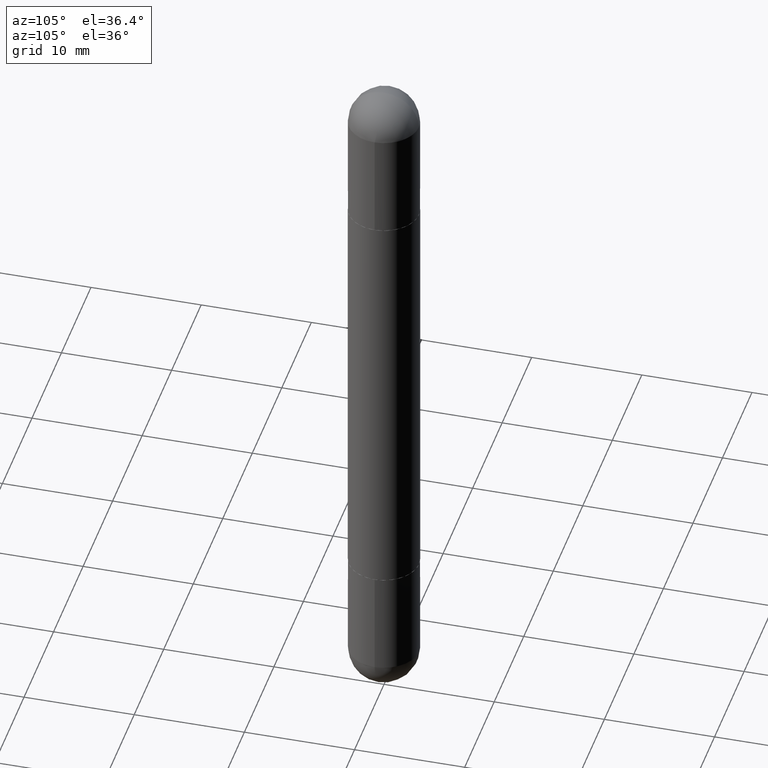
[diagram: clean part render]
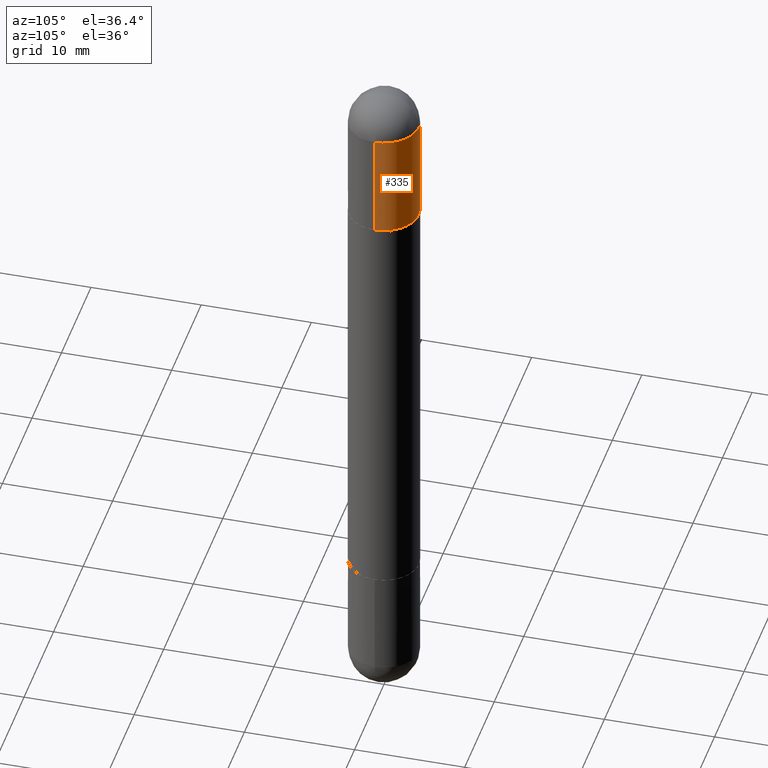
[diagram: same view with one face highlighted and labeled with its STEP entity id]
A machine part, auxiliary view. The second image highlights one B-rep face of the part: STEP entity #335.
In plain terms, the highlighted cylindrical surface (edge-blend (fillet) strip) has radius 3.175 mm, axis along (-0, 0, -1).
Its self-contained STEP definition (entity closure, byte-faithful):
#4 = DIRECTION ( 'NONE',  ( 2.445468806185136597E-29, -3.491481338843145583E-15, 1.000000000000000000 ) ) ;
#25 = CARTESIAN_POINT ( 'NONE',  ( 0.1250000000000000000, -8.728703347107833388E-16, -2.500000000000000444 ) ) ;
#31 = VECTOR ( 'NONE', #117, 39.37007874015748143 ) ;
#59 = DIRECTION ( 'NONE',  ( -2.445468806185136597E-29, 3.491481338843145583E-15, -1.000000000000000000 ) ) ;
#63 = CYLINDRICAL_SURFACE ( 'NONE', #712, 0.1250000000000000000 ) ;
#67 = VERTEX_POINT ( 'NONE', #444 ) ;
#93 = AXIS2_PLACEMENT_3D ( 'NONE', #137, #210, #538 ) ;
#117 = DIRECTION ( 'NONE',  ( -2.445468806185136877E-29, 3.491481338843145188E-15, -1.000000000000000000 ) ) ;
#137 = CARTESIAN_POINT ( 'NONE',  ( 5.807988414689700538E-29, -8.292268179752471696E-15, -0.1250000000000004441 ) ) ;
#149 = VERTEX_POINT ( 'NONE', #740 ) ;
#173 = VERTEX_POINT ( 'NONE', #778 ) ;
#174 = EDGE_CURVE ( 'NONE', #307, #173, #693, .T. ) ;
#191 = FACE_OUTER_BOUND ( 'NONE', #805, .T. ) ;
#210 = DIRECTION ( 'NONE',  ( 2.445468806185136597E-29, -3.491481338843145583E-15, 1.000000000000000000 ) ) ;
#212 = DIRECTION ( 'NONE',  ( 1.000000000000000000, -6.982962677686270655E-15, 0.000000000000000000 ) ) ;
#215 = CARTESIAN_POINT ( 'NONE',  ( 0.1250000000000000000, -8.510485763430165164E-15, -0.1250000000000004441 ) ) ;
#217 = CARTESIAN_POINT ( 'NONE',  ( 4.890937612370273194E-29, -6.982962677686291165E-15, -0.5000000000000006661 ) ) ;
#222 = ORIENTED_EDGE ( 'NONE', *, *, #641, .T. ) ;
#260 = DIRECTION ( 'NONE',  ( 1.000000000000000000, -6.982962677686270655E-15, 0.000000000000000000 ) ) ;
#268 = CARTESIAN_POINT ( 'NONE',  ( -0.1250000000000000000, 8.575622497214414453E-16, -2.500000000000000444 ) ) ;
#274 = VERTEX_POINT ( 'NONE', #769 ) ;
#277 = DIRECTION ( 'NONE',  ( -2.445468806185136877E-29, 3.491481338843145188E-15, -1.000000000000000000 ) ) ;
#286 = ORIENTED_EDGE ( 'NONE', *, *, #634, .F. ) ;
#307 = VERTEX_POINT ( 'NONE', #215 ) ;
#311 = ORIENTED_EDGE ( 'NONE', *, *, #336, .F. ) ;
#326 = AXIS2_PLACEMENT_3D ( 'NONE', #818, #642, #260 ) ;
#331 = DIRECTION ( 'NONE',  ( 1.000000000000000000, -6.982962677686266711E-15, 0.000000000000000000 ) ) ;
#335 = ADVANCED_FACE ( 'NONE', ( #191 ), #63, .T. ) ;
#336 = EDGE_CURVE ( 'NONE', #149, #274, #702, .T. ) ;
#402 = EDGE_CURVE ( 'NONE', #307, #67, #460, .T. ) ;
#444 = CARTESIAN_POINT ( 'NONE',  ( 8.728703347108403340E-16, 0.1249999999999915623, -0.1250000000000000000 ) ) ;
#460 = CIRCLE ( 'NONE', #326, 0.1250000000000000000 ) ;
#510 = CARTESIAN_POINT ( 'NONE',  ( 0.000000000000000000, 0.000000000000000000, -2.500000000000000444 ) ) ;
#538 = DIRECTION ( 'NONE',  ( 1.000000000000000000, -6.982962677686270655E-15, 0.000000000000000000 ) ) ;
#586 = CIRCLE ( 'NONE', #93, 0.1250000000000000000 ) ;
#607 = VECTOR ( 'NONE', #277, 39.37007874015748143 ) ;
#634 = EDGE_CURVE ( 'NONE', #67, #149, #586, .T. ) ;
#641 = EDGE_CURVE ( 'NONE', #173, #274, #785, .T. ) ;
#642 = DIRECTION ( 'NONE',  ( 2.445468806185136597E-29, -3.491481338843145583E-15, 1.000000000000000000 ) ) ;
#675 = ORIENTED_EDGE ( 'NONE', *, *, #402, .F. ) ;
#693 = LINE ( 'NONE', #25, #607 ) ;
#702 = LINE ( 'NONE', #268, #31 ) ;
#712 = AXIS2_PLACEMENT_3D ( 'NONE', #510, #59, #331 ) ;
#740 = CARTESIAN_POINT ( 'NONE',  ( -0.1250000000000000000, -6.780053178997941168E-15, -0.1250000000000004441 ) ) ;
#742 = ORIENTED_EDGE ( 'NONE', *, *, #174, .T. ) ;
#769 = CARTESIAN_POINT ( 'NONE',  ( -0.1250000000000000000, -6.780053178997939591E-15, -0.5000000000000006661 ) ) ;
#778 = CARTESIAN_POINT ( 'NONE',  ( 0.1250000000000000000, -7.855833012397075293E-15, -0.5000000000000006661 ) ) ;
#785 = CIRCLE ( 'NONE', #811, 0.1250000000000000000 ) ;
#805 = EDGE_LOOP ( 'NONE', ( #311, #286, #675, #742, #222 ) ) ;
#811 = AXIS2_PLACEMENT_3D ( 'NONE', #217, #4, #212 ) ;
#818 = CARTESIAN_POINT ( 'NONE',  ( 5.807988414689700538E-29, -8.292268179752471696E-15, -0.1250000000000004441 ) ) ;